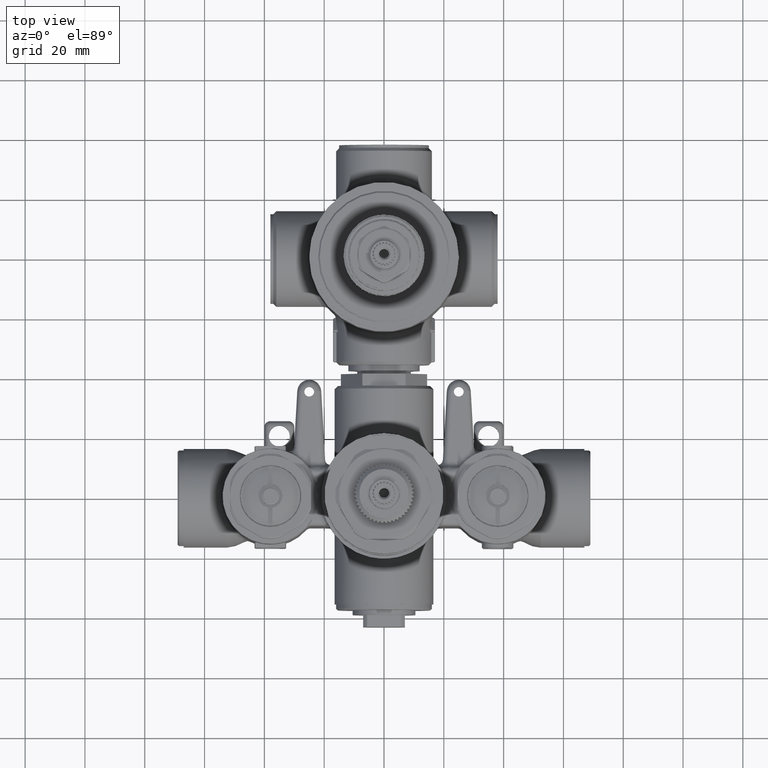
[diagram: clean part render]
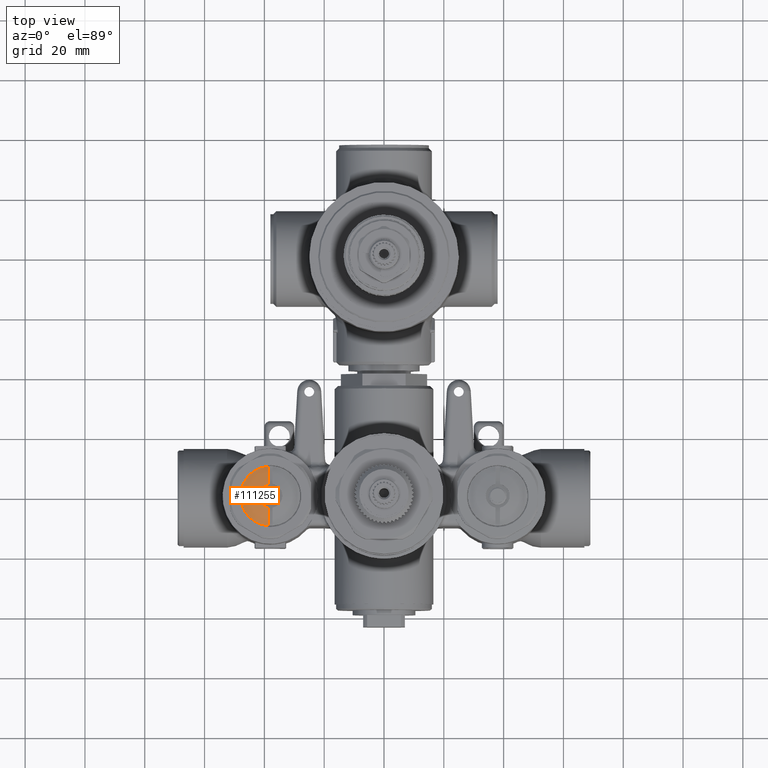
[diagram: same view with one face highlighted and labeled with its STEP entity id]
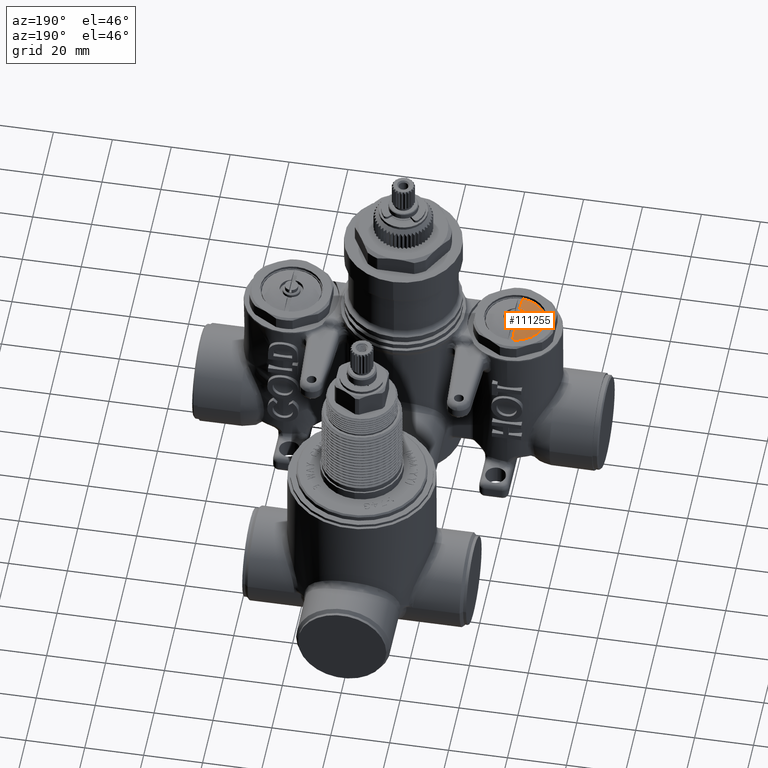
[diagram: same view with one face highlighted and labeled with its STEP entity id]
A machine part, top view. The second image highlights one B-rep face of the part: STEP entity #111255.
A second angle (auxiliary view) of the same face is appended — the face is thin or edge-on in the first view.
In plain terms, the highlighted spherical surface has radius 33.9169 mm.
Its self-contained STEP definition (entity closure, byte-faithful):
#38965=CARTESIAN_POINT('',(-1.496062992126E0,0.E0,-5.683701853633E-1));
#38966=DIRECTION('',(0.E0,0.E0,1.E0));
#38967=DIRECTION('',(-1.875000000292E-1,9.822646028383E-1,0.E0));
#38968=AXIS2_PLACEMENT_3D('',#38965,#38966,#38967);
#38970=CARTESIAN_POINT('',(-1.525590551181E0,0.E0,-1.894361456693E0));
#38971=DIRECTION('',(-1.E0,0.E0,0.E0));
#38972=DIRECTION('',(0.E0,-2.933406253666E-1,9.560079902959E-1));
#38973=AXIS2_PLACEMENT_3D('',#38970,#38971,#38972);
#38975=CARTESIAN_POINT('',(-1.496062992126E0,0.E0,-6.181065354331E-1));
#38976=DIRECTION('',(0.E0,0.E0,1.E0));
#38977=DIRECTION('',(-1.E0,-4.102064129415E-10,0.E0));
#38978=AXIS2_PLACEMENT_3D('',#38975,#38976,#38977);
#38980=CARTESIAN_POINT('',(-1.496062992126E0,0.E0,-6.181065354331E-1));
#38981=DIRECTION('',(0.E0,0.E0,1.E0));
#38982=DIRECTION('',(-7.518796988490E-2,9.971693783829E-1,0.E0));
#38983=AXIS2_PLACEMENT_3D('',#38980,#38981,#38982);
#38985=CARTESIAN_POINT('',(-1.525590551181E0,0.E0,-1.894361456693E0));
#38986=DIRECTION('',(-1.E0,0.E0,0.E0));
#38987=DIRECTION('',(0.E0,1.158720954807E-1,9.932641428587E-1));
#38988=AXIS2_PLACEMENT_3D('',#38985,#38986,#38987);
#43199=CARTESIAN_POINT('',(-1.525590551165E0,3.916049035185E-1,
-6.181065354331E-1));
#43200=CARTESIAN_POINT('',(-1.888779527559E0,-1.610947937186E-10,
-6.181065354331E-1));
#43201=VERTEX_POINT('',#43199);
#43202=VERTEX_POINT('',#43200);
#43203=CARTESIAN_POINT('',(-1.525590551181E0,1.546873390155E-1,
-5.683701853615E-1));
#43204=VERTEX_POINT('',#43203);
#43213=CARTESIAN_POINT('',(-1.525590551236E0,-3.916049035132E-1,
-6.181065354331E-1));
#43214=VERTEX_POINT('',#43213);
#43216=CARTESIAN_POINT('',(-1.525590551992E0,-1.546873431554E-1,
-5.683701858587E-1));
#43218=VERTEX_POINT('',#43216);
#111240=CARTESIAN_POINT('',(-1.496062992126E0,0.E0,-1.894361456693E0));
#111241=DIRECTION('',(0.E0,0.E0,1.E0));
#111242=DIRECTION('',(1.E0,0.E0,0.E0));
#111243=AXIS2_PLACEMENT_3D('',#111240,#111241,#111242);
#111244=SPHERICAL_SURFACE('',#111243,1.335310039370E0);
#111246=ORIENTED_EDGE('',*,*,#111245,.T.);
#111248=ORIENTED_EDGE('',*,*,#111247,.F.);
#111249=ORIENTED_EDGE('',*,*,#111230,.F.);
#111250=ORIENTED_EDGE('',*,*,#111216,.F.);
#111252=ORIENTED_EDGE('',*,*,#111251,.F.);
#111253=EDGE_LOOP('',(#111246,#111248,#111249,#111250,#111252));
#111254=FACE_OUTER_BOUND('',#111253,.F.);
#111255=ADVANCED_FACE('',(#111254),#111244,.T.);
#38969=CIRCLE('',#38968,1.574803149606E-1);
#38974=CIRCLE('',#38973,1.334983529673E0);
#38979=CIRCLE('',#38978,3.927165354331E-1);
#38984=CIRCLE('',#38983,3.927165354331E-1);
#38989=CIRCLE('',#38988,1.334983529673E0);
#111216=EDGE_CURVE('',#43201,#43202,#38984,.T.);
#111230=EDGE_CURVE('',#43202,#43214,#38979,.T.);
#111245=EDGE_CURVE('',#43204,#43218,#38969,.T.);
#111247=EDGE_CURVE('',#43214,#43218,#38974,.T.);
#111251=EDGE_CURVE('',#43204,#43201,#38989,.T.);